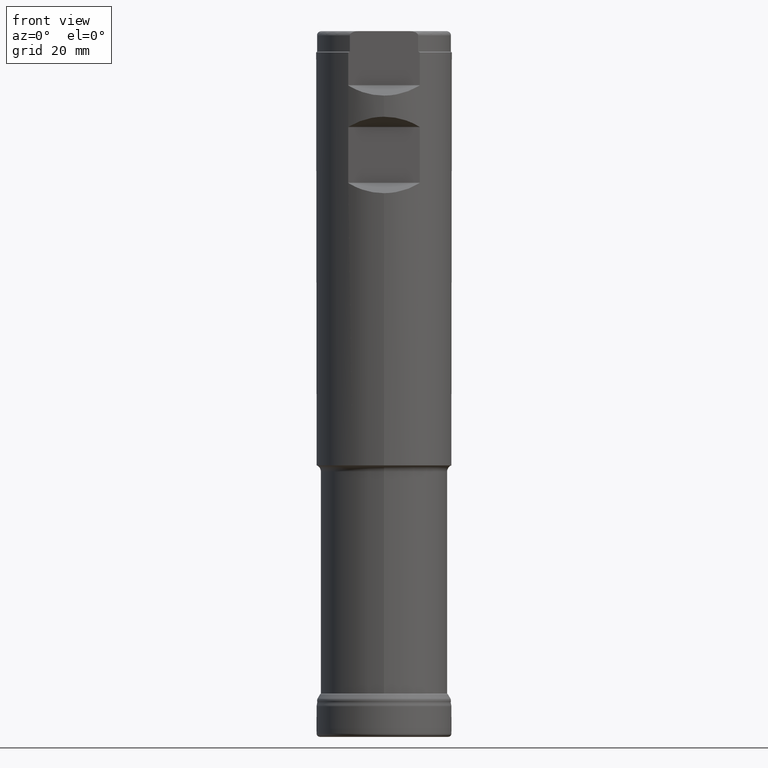
[diagram: clean part render]
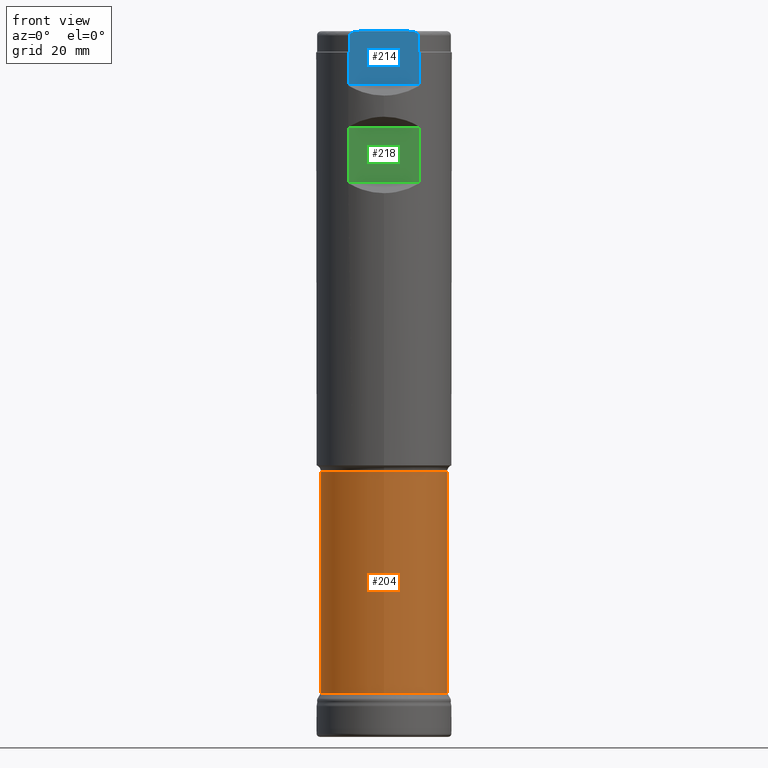
[diagram: same view with three faces highlighted in distinct colors, each labeled with its STEP entity id]
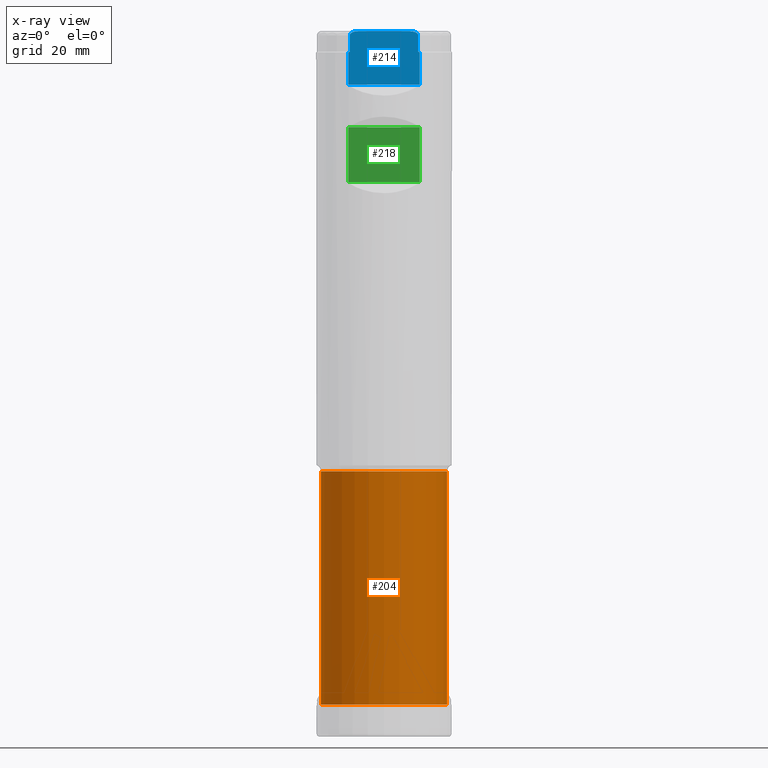
[diagram: x-ray of the same camera — body ghosted, the three highlighted faces saturated]
A machine part, front view with three faces highlighted in distinct colors.
The next image is the same camera in x-ray (body ghosted, the three faces saturated) — at least one of them is partly hidden behind the body in this view.
Their STEP definitions:

[orange] entity #204 — the highlighted cylindrical surface (bore or boss wall) has radius 14.875 mm, axis along (0, 0, 1).
#204=ADVANCED_FACE('',(#340,#341),#260,.T.);
#260=CYLINDRICAL_SURFACE('',#1033,14.875);
#288=CIRCLE('',#1031,14.875);
#289=CIRCLE('',#1032,14.875);
#340=FACE_BOUND('',#448,.T.);
#341=FACE_BOUND('',#449,.T.);
#448=EDGE_LOOP('',(#618));
#449=EDGE_LOOP('',(#619));
#618=ORIENTED_EDGE('',*,*,#879,.T.);
#619=ORIENTED_EDGE('',*,*,#880,.T.);
#796=VERTEX_POINT('',#1779);
#797=VERTEX_POINT('',#1781);
#879=EDGE_CURVE('',#796,#796,#288,.T.);
#880=EDGE_CURVE('',#797,#797,#289,.T.);
#1031=AXIS2_PLACEMENT_3D('',#1778,#1166,#1167);
#1032=AXIS2_PLACEMENT_3D('',#1780,#1168,#1169);
#1033=AXIS2_PLACEMENT_3D('',#1782,#1170,#1171);
#1166=DIRECTION('',(0.,-1.17145536458252E-15,-1.));
#1167=DIRECTION('',(0.,-1.,1.39944078734263E-15));
#1168=DIRECTION('',(0.,1.17145536458252E-15,1.));
#1169=DIRECTION('',(0.,-1.,1.16620065611886E-15));
#1170=DIRECTION('',(0.,1.17145536458252E-15,1.));
#1171=DIRECTION('',(0.,-1.,1.17145536458252E-15));
#1778=CARTESIAN_POINT('',(0.,7.2730727586683E-14,62.0857864376269));
#1779=CARTESIAN_POINT('',(0.,-14.8749999999999,62.0857864376269));
#1780=CARTESIAN_POINT('',(0.,8.83308087997499E-15,7.54026243511452));
#1781=CARTESIAN_POINT('',(0.,-14.875,7.54026243511454));
#1782=CARTESIAN_POINT('',(0.,0.,0.));

[blue] entity #214 — the highlighted planar face has unit normal (0, -1, 0).
#179=PLANE('',#1048);
#187=FACE_OUTER_BOUND('',#467,.T.);
#214=ADVANCED_FACE('',(#187),#179,.T.);
#467=EDGE_LOOP('',(#652,#653,#654,#655,#656,#657,#658,#659,#660,#661));
#548=LINE('',#1645,#561);
#549=LINE('',#1649,#562);
#550=LINE('',#1670,#563);
#551=LINE('',#1674,#564);
#552=LINE('',#1681,#565);
#553=LINE('',#2041,#566);
#561=VECTOR('',#1111,1.);
#562=VECTOR('',#1114,1.);
#563=VECTOR('',#1121,1.);
#564=VECTOR('',#1124,1.);
#565=VECTOR('',#1131,1.);
#566=VECTOR('',#1200,1.);
#652=ORIENTED_EDGE('',*,*,#895,.T.);
#653=ORIENTED_EDGE('',*,*,#852,.F.);
#654=ORIENTED_EDGE('',*,*,#862,.T.);
#655=ORIENTED_EDGE('',*,*,#856,.F.);
#656=ORIENTED_EDGE('',*,*,#865,.F.);
#657=ORIENTED_EDGE('',*,*,#861,.F.);
#658=ORIENTED_EDGE('',*,*,#864,.F.);
#659=ORIENTED_EDGE('',*,*,#858,.F.);
#660=ORIENTED_EDGE('',*,*,#863,.T.);
#661=ORIENTED_EDGE('',*,*,#850,.F.);
#770=VERTEX_POINT('',#1643);
#772=VERTEX_POINT('',#1646);
#773=VERTEX_POINT('',#1648);
#774=VERTEX_POINT('',#1650);
#776=VERTEX_POINT('',#1668);
#777=VERTEX_POINT('',#1669);
#778=VERTEX_POINT('',#1671);
#779=VERTEX_POINT('',#1673);
#781=VERTEX_POINT('',#1679);
#782=VERTEX_POINT('',#1680);
#850=EDGE_CURVE('',#770,#772,#548,.T.);
#852=EDGE_CURVE('',#773,#774,#549,.T.);
#856=EDGE_CURVE('',#777,#778,#550,.T.);
#858=EDGE_CURVE('',#779,#776,#551,.T.);
#861=EDGE_CURVE('',#782,#781,#552,.T.);
#862=EDGE_CURVE('',#773,#778,#963,.T.);
#863=EDGE_CURVE('',#779,#772,#964,.T.);
#864=EDGE_CURVE('',#776,#782,#965,.T.);
#865=EDGE_CURVE('',#781,#777,#966,.T.);
#895=EDGE_CURVE('',#770,#774,#553,.T.);
#963=B_SPLINE_CURVE_WITH_KNOTS('',3,(#1683,#1684,#1685,#1686),
 .UNSPECIFIED.,.F.,.F.,(4,4),(0.,1.),.UNSPECIFIED.);
#964=B_SPLINE_CURVE_WITH_KNOTS('',3,(#1687,#1688,#1689,#1690),
 .UNSPECIFIED.,.F.,.F.,(4,4),(0.,1.),.UNSPECIFIED.);
#965=B_SPLINE_CURVE_WITH_KNOTS('',3,(#1692,#1693,#1694,#1695,#1696,#1697,
#1698,#1699),.UNSPECIFIED.,.F.,.F.,(4,2,2,4),(0.,0.25,0.5,1.),
 .UNSPECIFIED.);
#966=B_SPLINE_CURVE_WITH_KNOTS('',3,(#1700,#1701,#1702,#1703,#1704,#1705,
#1706,#1707),.UNSPECIFIED.,.F.,.F.,(4,2,2,4),(0.,0.5,0.75,1.),
 .UNSPECIFIED.);
#1048=AXIS2_PLACEMENT_3D('',#2042,#1201,#1202);
#1111=DIRECTION('',(0.,1.17145536458252E-15,1.));
#1114=DIRECTION('',(0.,-1.17145536458252E-15,-1.));
#1121=DIRECTION('',(0.,-1.17145536458252E-15,-1.));
#1124=DIRECTION('',(0.,1.17145536458252E-15,1.));
#1131=DIRECTION('',(1.,-7.17309531289991E-32,-6.12323399573676E-17));
#1200=DIRECTION('',(1.,-7.17309531289991E-32,-6.12323399573676E-17));
#1201=DIRECTION('',(2.05927208001509E-49,-1.,1.17145536458252E-15));
#1202=DIRECTION('',(6.24500451351651E-17,1.17093834628434E-15,1.));
#1643=CARTESIAN_POINT('',(-8.37291264972949,-13.4873999999998,152.524264068712));
#1645=CARTESIAN_POINT('',(-8.37291264972949,-13.4874,1.57998870842703E-14));
#1646=CARTESIAN_POINT('',(-8.37291264972948,-13.4873999999998,160.1));
#1648=CARTESIAN_POINT('',(8.37291264972948,-13.4873999999998,160.1));
#1649=CARTESIAN_POINT('',(8.37291264972949,-13.4874,1.57998870842703E-14));
#1650=CARTESIAN_POINT('',(8.37291264972949,-13.4873999999998,152.524264068712));
#1668=CARTESIAN_POINT('',(-7.98721893028869,-13.4873999999998,164.099999999989));
#1669=CARTESIAN_POINT('',(7.98721893026602,-13.4873999999998,164.1));
#1670=CARTESIAN_POINT('',(7.98721893026602,-13.4874,1.57998870842703E-14));
#1671=CARTESIAN_POINT('',(7.98721893026602,-13.4873999999998,160.3));
#1673=CARTESIAN_POINT('',(-7.98721893026602,-13.4873999999998,160.3));
#1674=CARTESIAN_POINT('',(-7.98721893026602,-13.4874,1.57998870842703E-14));
#1679=CARTESIAN_POINT('',(5.78322282468843,-13.4873999999998,165.1));
#1680=CARTESIAN_POINT('',(-5.78322282468865,-13.4873999999998,165.1));
#1681=CARTESIAN_POINT('',(-17.5,-13.4873999999998,165.1));
#1683=CARTESIAN_POINT('',(8.37291264972947,-13.4873999999998,160.1));
#1684=CARTESIAN_POINT('',(8.24478103671273,-13.4873999999998,160.1675801451));
#1685=CARTESIAN_POINT('',(8.11622498021636,-13.4873999999998,160.234264780588));
#1686=CARTESIAN_POINT('',(7.98721893026602,-13.4873999999998,160.3));
#1687=CARTESIAN_POINT('',(-7.98721893026602,-13.4873999999998,160.3));
#1688=CARTESIAN_POINT('',(-8.11630235072829,-13.4873999999998,160.234225356332));
#1689=CARTESIAN_POINT('',(-8.2448563109074,-13.4873999999998,160.167540443414));
#1690=CARTESIAN_POINT('',(-8.37291264972948,-13.4873999999998,160.1));
#1692=CARTESIAN_POINT('',(-7.98721893026687,-13.4873999999998,164.099999999988));
#1693=CARTESIAN_POINT('',(-7.98721893027205,-13.4873999999998,164.32020277002));
#1694=CARTESIAN_POINT('',(-7.83736774434983,-13.4873999999998,164.515154682752));
#1695=CARTESIAN_POINT('',(-7.48623082979299,-13.4873999999998,164.780139720299));
#1696=CARTESIAN_POINT('',(-7.28172032421563,-13.4873999999998,164.867554950671));
#1697=CARTESIAN_POINT('',(-6.657292939813,-13.4873999999998,165.0609297127));
#1698=CARTESIAN_POINT('',(-6.21637245039727,-13.4873999999998,165.1));
#1699=CARTESIAN_POINT('',(-5.78322282468865,-13.4873999999998,165.1));
#1700=CARTESIAN_POINT('',(5.78322282468844,-13.4873999999998,165.1));
#1701=CARTESIAN_POINT('',(6.21394869343175,-13.4873999999998,165.1));
#1702=CARTESIAN_POINT('',(6.65580566004196,-13.4873999999998,165.061664403719));
#1703=CARTESIAN_POINT('',(7.28486381477455,-13.4873999999998,164.86644362587));
#1704=CARTESIAN_POINT('',(7.48748729423046,-13.4873999999998,164.779507582041));
#1705=CARTESIAN_POINT('',(7.83842269980533,-13.4873999999998,164.514040424023));
#1706=CARTESIAN_POINT('',(7.98721893026602,-13.4873999999998,164.322383261353));
#1707=CARTESIAN_POINT('',(7.98721893026602,-13.4873999999998,164.1));
#2041=CARTESIAN_POINT('',(-17.5,-13.4873999999998,152.524264068712));
#2042=CARTESIAN_POINT('',(-17.5,-13.4873999999998,165.1));

[green] entity #218 — the highlighted planar face has unit normal (0, -1, 0).
#182=PLANE('',#1052);
#191=FACE_OUTER_BOUND('',#471,.T.);
#218=ADVANCED_FACE('',(#191),#182,.T.);
#471=EDGE_LOOP('',(#670,#671,#672,#673));
#546=LINE('',#1595,#559);
#547=LINE('',#1627,#560);
#556=LINE('',#2048,#569);
#557=LINE('',#2049,#570);
#559=VECTOR('',#1105,1.);
#560=VECTOR('',#1108,1.);
#569=VECTOR('',#1211,1.);
#570=VECTOR('',#1212,1.);
#670=ORIENTED_EDGE('',*,*,#898,.T.);
#671=ORIENTED_EDGE('',*,*,#847,.F.);
#672=ORIENTED_EDGE('',*,*,#899,.T.);
#673=ORIENTED_EDGE('',*,*,#843,.F.);
#762=VERTEX_POINT('',#1578);
#764=VERTEX_POINT('',#1594);
#765=VERTEX_POINT('',#1596);
#768=VERTEX_POINT('',#1626);
#843=EDGE_CURVE('',#764,#765,#546,.T.);
#847=EDGE_CURVE('',#768,#762,#547,.T.);
#898=EDGE_CURVE('',#764,#762,#556,.T.);
#899=EDGE_CURVE('',#768,#765,#557,.T.);
#1052=AXIS2_PLACEMENT_3D('',#2050,#1213,#1214);
#1105=DIRECTION('',(0.,-1.17145536458252E-15,-1.));
#1108=DIRECTION('',(0.,1.17145536458252E-15,1.));
#1211=DIRECTION('',(-1.,7.17309531289991E-32,6.12323399573676E-17));
#1212=DIRECTION('',(1.,-7.17309531289991E-32,-6.12323399573676E-17));
#1213=DIRECTION('',(2.05927208001509E-49,-1.,1.17145536458252E-15));
#1214=DIRECTION('',(6.24500451351651E-17,1.17093834628434E-15,1.));
#1578=CARTESIAN_POINT('',(-8.37291264972949,-13.4873999999998,142.557060931288));
#1594=CARTESIAN_POINT('',(8.37291264972949,-13.4873999999998,142.557060931288));
#1595=CARTESIAN_POINT('',(8.37291264972949,-13.4874,1.57998870842703E-14));
#1596=CARTESIAN_POINT('',(8.37291264972949,-13.4873999999998,129.699189068712));
#1626=CARTESIAN_POINT('',(-8.37291264972949,-13.4873999999998,129.699189068712));
#1627=CARTESIAN_POINT('',(-8.37291264972949,-13.4874,1.57998870842703E-14));
#2048=CARTESIAN_POINT('',(-17.5,-13.4873999999998,142.557060931288));
#2049=CARTESIAN_POINT('',(-17.5,-13.4873999999998,129.699189068712));
#2050=CARTESIAN_POINT('',(-17.5,-13.4873999999998,142.681325));